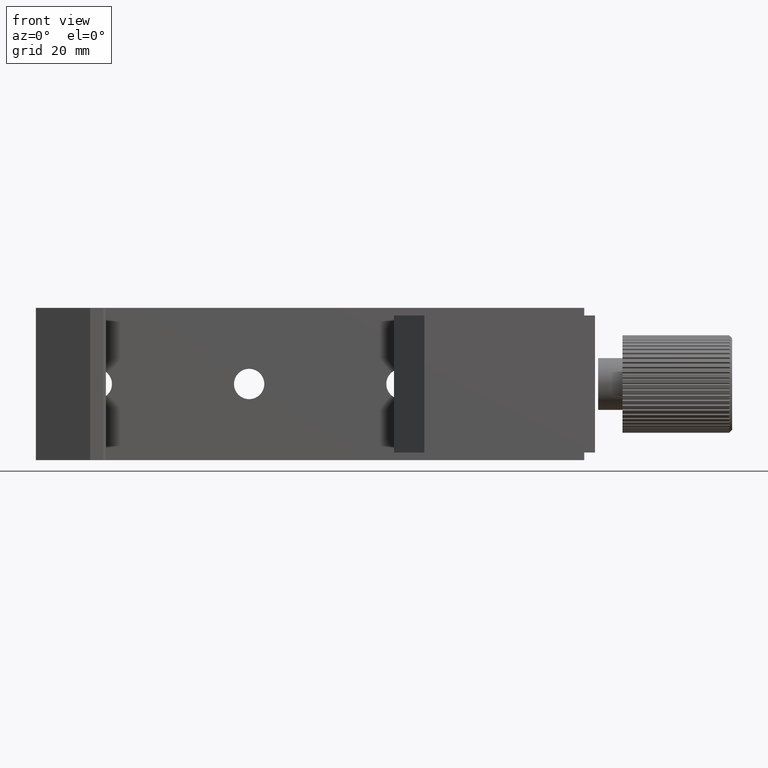
[diagram: clean part render]
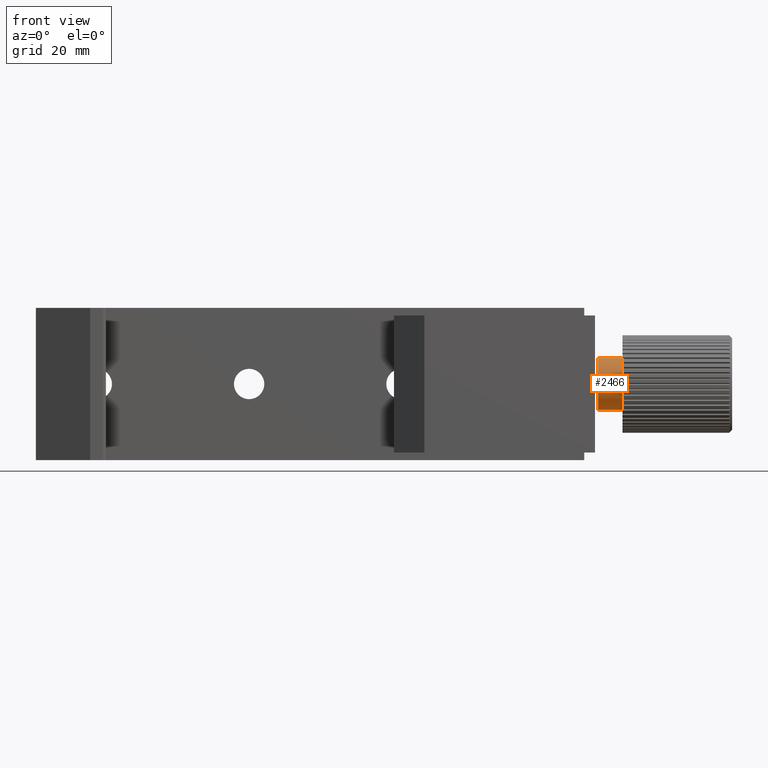
[diagram: same view with one face highlighted and labeled with its STEP entity id]
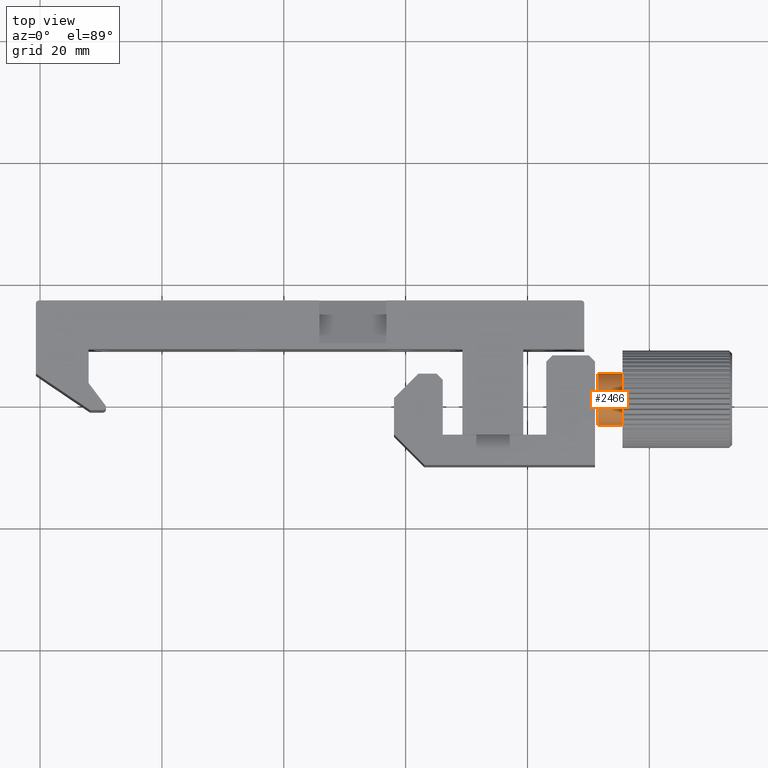
[diagram: same view with one face highlighted and labeled with its STEP entity id]
A machine part, front view. The second image highlights one B-rep face of the part: STEP entity #2466.
A second angle (top view) of the same face is appended — the face is thin or edge-on in the first view.
In plain terms, the highlighted cylindrical surface (bore or boss wall) has radius 4.25 mm, axis along (1, -0, -0).
Its self-contained STEP definition (entity closure, byte-faithful):
#769 = CIRCLE ( 'NONE', #1116, 4.250000000000000000 ) ;
#775 = CIRCLE ( 'NONE', #1117, 4.250000000000000000 ) ;
#959 = VERTEX_POINT ( 'NONE', #6515 ) ;
#960 = VERTEX_POINT ( 'NONE', #6516 ) ;
#1116 = AXIS2_PLACEMENT_3D ( 'NONE', #3328, #3329, #3330 ) ;
#1117 = AXIS2_PLACEMENT_3D ( 'NONE', #3335, #3336, #3337 ) ;
#2466 = ADVANCED_FACE ( 'NONE', ( #4750, #4753 ), #4755, .T. ) ;
#2629 = DIRECTION ( 'NONE',  ( 0.0000000000000000000, 0.0000000000000000000, -1.000000000000000000 ) ) ;
#2633 = DIRECTION ( 'NONE',  ( 1.000000000000000000, -0.0000000000000000000, -0.0000000000000000000 ) ) ;
#2636 = CARTESIAN_POINT ( 'NONE',  ( 11.58817508845302200, 1.059530426956774900, 0.0000000000000000000 ) ) ;
#2691 = AXIS2_PLACEMENT_3D ( 'NONE', #2636, #2633, #2629 ) ;
#3328 = CARTESIAN_POINT ( 'NONE',  ( 11.58817508845302200, 1.059530426956774900, 0.0000000000000000000 ) ) ;
#3329 = DIRECTION ( 'NONE',  ( -1.000000000000000000, 0.0000000000000000000, 0.0000000000000000000 ) ) ;
#3330 = DIRECTION ( 'NONE',  ( 0.0000000000000000000, 0.0000000000000000000, 1.000000000000000000 ) ) ;
#3335 = CARTESIAN_POINT ( 'NONE',  ( 15.58817508845302200, 1.059530426956774900, 0.0000000000000000000 ) ) ;
#3336 = DIRECTION ( 'NONE',  ( -1.000000000000000000, -0.0000000000000000000, -0.0000000000000000000 ) ) ;
#3337 = DIRECTION ( 'NONE',  ( 0.0000000000000000000, 0.0000000000000000000, -1.000000000000000000 ) ) ;
#3929 = ORIENTED_EDGE ( 'NONE', *, *, #6893, .T. ) ;
#4750 = FACE_OUTER_BOUND ( 'NONE', #4911, .T. ) ;
#4753 = FACE_OUTER_BOUND ( 'NONE', #4909, .T. ) ;
#4755 = CYLINDRICAL_SURFACE ( 'NONE', #2691, 4.250000000000000000 ) ;
#4909 = EDGE_LOOP ( 'NONE', ( #3929 ) ) ;
#4911 = EDGE_LOOP ( 'NONE', ( #6287 ) ) ;
#6287 = ORIENTED_EDGE ( 'NONE', *, *, #6890, .F. ) ;
#6515 = CARTESIAN_POINT ( 'NONE',  ( 11.58817508845302200, 1.059530426956774900, 4.250000000000000000 ) ) ;
#6516 = CARTESIAN_POINT ( 'NONE',  ( 15.58817508845302200, 1.059530426956774900, -4.250000000000000000 ) ) ;
#6890 = EDGE_CURVE ( 'NONE', #959, #959, #769, .T. ) ;
#6893 = EDGE_CURVE ( 'NONE', #960, #960, #775, .T. ) ;